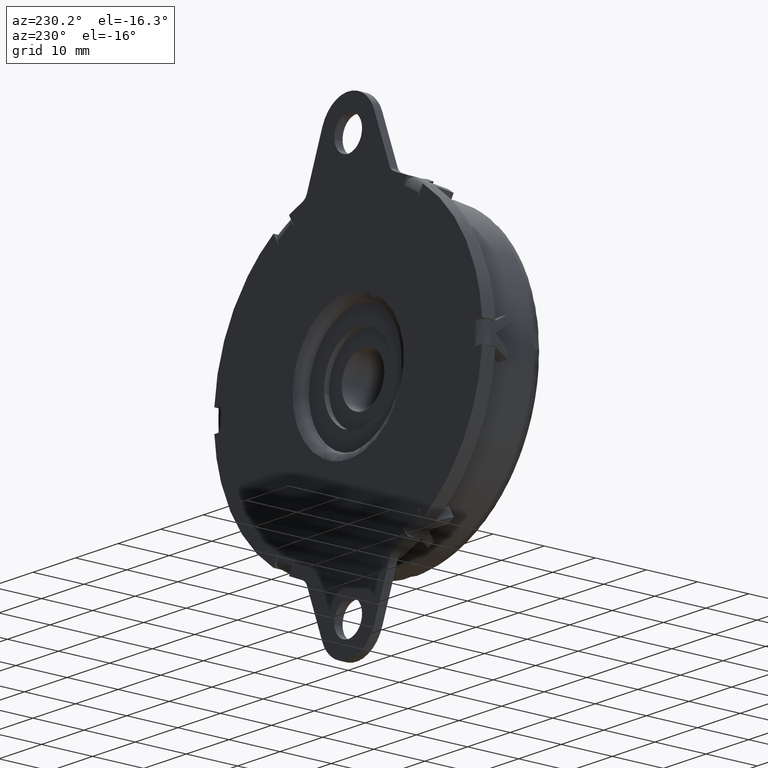
[diagram: clean part render]
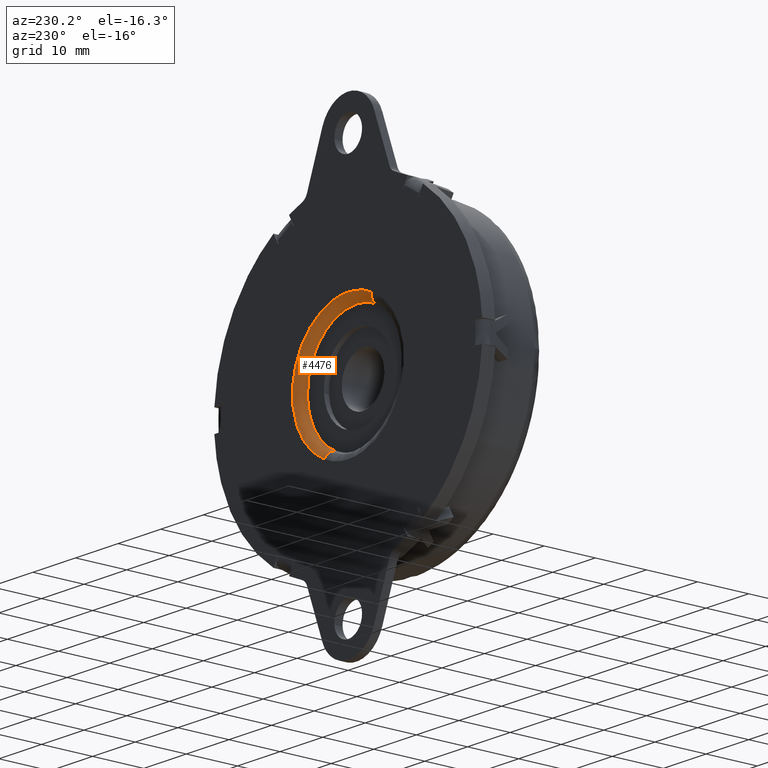
[diagram: same view with one face highlighted and labeled with its STEP entity id]
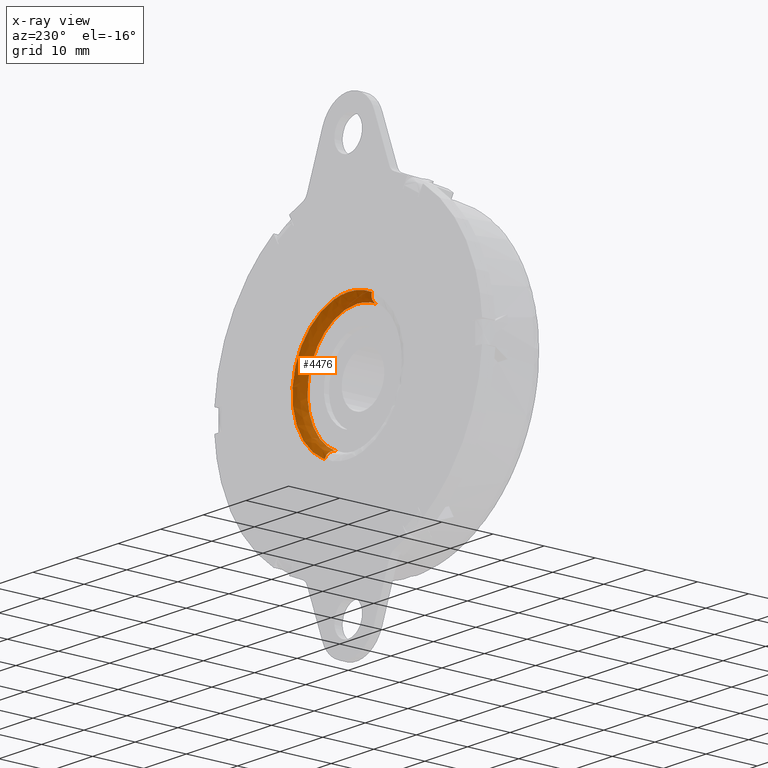
[diagram: x-ray of the same camera — body ghosted, the highlighted face saturated]
A machine part, auxiliary view. The second image highlights one B-rep face of the part: STEP entity #4476.
The next image is the same camera in x-ray: the body ghosted, the highlighted face saturated — about 0% of this face is hidden behind the body in this view.
In plain terms, the highlighted face is a freeform B-spline surface patch.
Its self-contained STEP definition (entity closure, byte-faithful):
#3776=CARTESIAN_POINT('',(-4.896461853000357,-1.600000000029603,10.405511103358270));
#3777=VERTEX_POINT('',#3776);
#3793=CARTESIAN_POINT('',(0.0,-1.600000000000045,11.500000000000000));
#3794=VERTEX_POINT('',#3793);
#3795=CARTESIAN_POINT('',(-4.896461853000357,-1.600000000029603,10.405511103358272));
#3796=CARTESIAN_POINT('',(-2.570554553318387,-1.600000000014824,11.500000000000007));
#3797=CARTESIAN_POINT('',(0.0,-1.600000000000045,11.500000000000000));
#3805=(BOUNDED_CURVE()B_SPLINE_CURVE(2,(#3795,#3796,#3797),.UNSPECIFIED.,.F.,.U.)B_SPLINE_CURVE_WITH_KNOTS((3,3),(0.927668464636445,1.0),.UNSPECIFIED.)CURVE()GEOMETRIC_REPRESENTATION_ITEM()RATIONAL_B_SPLINE_CURVE((0.879552628112392,0.915258335142597,1.0))REPRESENTATION_ITEM(''));
#3806=EDGE_CURVE('',#3777,#3794,#3805,.T.);
#3808=CARTESIAN_POINT('',(11.269134103130069,-1.600000000015115,2.292731245844300));
#3809=VERTEX_POINT('',#3808);
#3810=CARTESIAN_POINT('',(0.0,-1.600000000000045,11.500000000000000));
#3811=CARTESIAN_POINT('',(9.395894103645524,-1.600000000002744,11.500000000000000));
#3812=CARTESIAN_POINT('',(11.269134103130078,-1.600000000015115,2.292731245844301));
#3820=(BOUNDED_CURVE()B_SPLINE_CURVE(2,(#3810,#3811,#3812),.UNSPECIFIED.,.F.,.U.)B_SPLINE_CURVE_WITH_KNOTS((3,3),(0.0,0.215824476329975),.UNSPECIFIED.)CURVE()GEOMETRIC_REPRESENTATION_ITEM()RATIONAL_B_SPLINE_CURVE((1.0,0.747145897715944,0.930868629138625))REPRESENTATION_ITEM(''));
#3821=EDGE_CURVE('',#3794,#3809,#3820,.T.);
#3875=CARTESIAN_POINT('',(4.896461853000353,-1.600000000029604,-10.405511103358270));
#3876=VERTEX_POINT('',#3875);
#3877=CARTESIAN_POINT('',(11.269134103130078,-1.600000000015115,2.292731245844301));
#3878=CARTESIAN_POINT('',(11.500000000000000,-1.600000000016640,1.157989109633505));
#3879=CARTESIAN_POINT('',(11.500000000000000,-1.600000000018128,1.086710E-015));
#3880=CARTESIAN_POINT('',(11.500000000000002,-1.600000000027508,-7.298121921756137));
#3881=CARTESIAN_POINT('',(4.896461853000353,-1.600000000029603,-10.405511103358272));
#3889=(BOUNDED_CURVE()B_SPLINE_CURVE(2,(#3877,#3878,#3879,#3880,#3881),.UNSPECIFIED.,.F.,.U.)B_SPLINE_CURVE_WITH_KNOTS((3,2,3),(0.215824476329975,0.250000000000000,0.427668464636445),.UNSPECIFIED.)CURVE()GEOMETRIC_REPRESENTATION_ITEM()RATIONAL_B_SPLINE_CURVE((0.930868629138625,0.959960883470603,1.0,0.791848446043951,0.879552628112392))REPRESENTATION_ITEM(''));
#3890=EDGE_CURVE('',#3809,#3876,#3889,.T.);
#4354=CARTESIAN_POINT('',(-5.963176868610313,-0.004499903512453,11.804374172743010));
#4355=CARTESIAN_POINT('',(-5.796945072676427,-0.004499903512453,11.882596918311263));
#4356=CARTESIAN_POINT('',(6.332970350237564,-0.004499903512453,17.590501850460196));
#4357=CARTESIAN_POINT('',(11.961736100348876,-0.004499903512453,5.628765750111318));
#4358=CARTESIAN_POINT('',(17.590501850460196,-0.004499903512453,-6.332970350237563));
#4359=CARTESIAN_POINT('',(5.460586427546122,-0.004499903512453,-12.040875282386533));
#4360=CARTESIAN_POINT('',(5.294354631612140,-0.004499903512453,-12.119098027954831));
#4361=CARTESIAN_POINT('',(-5.336917881007624,0.099846889138506,10.564666617258721));
#4362=CARTESIAN_POINT('',(-5.188143919802224,0.099846889138506,10.634674329376439));
#4363=CARTESIAN_POINT('',(5.667875269638032,0.099846889138506,15.743129196081803));
#4364=CARTESIAN_POINT('',(10.705502232859921,0.099846889138506,5.037626963221888));
#4365=CARTESIAN_POINT('',(15.743129196081803,0.099846889138506,-5.667875269638032));
#4366=CARTESIAN_POINT('',(4.887110006641474,0.099846889138506,-10.776330136343439));
#4367=CARTESIAN_POINT('',(4.738336045435988,0.099846889138506,-10.846337848461198));
#4368=CARTESIAN_POINT('',(-5.203772058386470,-1.260788624124758,10.301098531926369));
#4369=CARTESIAN_POINT('',(-5.058709720985472,-1.260788624124758,10.369359686456431));
#4370=CARTESIAN_POINT('',(5.526472697570054,-1.260788624124758,15.350368442744585));
#4371=CARTESIAN_POINT('',(10.438420570157319,-1.260788624124758,4.911947872587266));
#4372=CARTESIAN_POINT('',(15.350368442744585,-1.260788624124758,-5.526472697570053));
#4373=CARTESIAN_POINT('',(4.765186024188987,-1.260788624124758,-10.507481453858246));
#4374=CARTESIAN_POINT('',(4.620123686787903,-1.260788624124758,-10.575742608388342));
#4375=CARTESIAN_POINT('',(-5.181370061248143,-1.489717720617386,10.256752780950990));
#4376=CARTESIAN_POINT('',(-5.036932210475476,-1.489717720617386,10.324720074379673));
#4377=CARTESIAN_POINT('',(5.502681489160671,-1.489717720617386,15.284285819203761));
#4378=CARTESIAN_POINT('',(10.393483654182216,-1.489717720617386,4.890802165021546));
#4379=CARTESIAN_POINT('',(15.284285819203761,-1.489717720617386,-5.502681489160670));
#4380=CARTESIAN_POINT('',(4.744672119567539,-1.489717720617386,-10.462247233984792));
#4381=CARTESIAN_POINT('',(4.600234268794790,-1.489717720617386,-10.530214527413516));
#4382=CARTESIAN_POINT('',(-5.189511350267297,-1.723275520148237,10.272868825124762));
#4383=CARTESIAN_POINT('',(-5.044846549812490,-1.723275520148237,10.340942912967492));
#4384=CARTESIAN_POINT('',(5.511327642562965,-1.723275520148237,15.308301434153972));
#4385=CARTESIAN_POINT('',(10.409814538358468,-1.723275520148237,4.898486895795505));
#4386=CARTESIAN_POINT('',(15.308301434153972,-1.723275520148237,-5.511327642562964));
#4387=CARTESIAN_POINT('',(4.752127241778444,-1.723275520148237,-10.478686163749479));
#4388=CARTESIAN_POINT('',(4.607462441323556,-1.723275520148238,-10.546760251592248));
#4396=(BOUNDED_SURFACE()B_SPLINE_SURFACE(2,2,((#4354,#4361,#4368,#4375,#4382),(#4355,#4362,#4369,#4376,#4383),(#4356,#4363,#4370,#4377,#4384),(#4357,#4364,#4371,#4378,#4385),(#4358,#4365,#4372,#4379,#4386),(#4359,#4366,#4373,#4380,#4387),(#4360,#4367,#4374,#4381,#4388)),.UNSPECIFIED.,.F.,.F.,.U.)B_SPLINE_SURFACE_WITH_KNOTS((3,1,2,1,3),(3,2,3),(0.0,0.438069424102511,22.341540629074849,44.245011834047183,44.683081258149947),(0.0,2.394959752096725,2.910430458320736),.UNSPECIFIED.)GEOMETRIC_REPRESENTATION_ITEM()RATIONAL_B_SPLINE_SURFACE(((0.967137327404569,0.746210794131191,1.011715728752620,0.954570711582519,0.919959430465262),(0.961537573307450,0.741890211279772,1.005857864376310,0.949043718567453,0.914632837804676),(0.675950114356304,0.521540485858931,0.707106781186548,0.667167074801020,0.642976612116663),(0.955937819210330,0.737569628428354,1.0,0.943516725552387,0.909306245144090),(0.675950114356304,0.521540485858931,0.707106781186548,0.667167074801020,0.642976612116663),(0.961537573307453,0.741890211279775,1.005857864376313,0.949043718567456,0.914632837804679),(0.967137327404576,0.746210794131196,1.011715728752627,0.954570711582526,0.919959430465268)))REPRESENTATION_ITEM('')SURFACE());
#4397=ORIENTED_EDGE('',*,*,#3806,.F.);
#4398=CARTESIAN_POINT('',(-5.577708719492491,-3.578918E-014,11.853234387290099));
#4399=VERTEX_POINT('',#4398);
#4400=CARTESIAN_POINT('',(-5.577708719492491,-3.578918E-014,11.853234387290103));
#4401=CARTESIAN_POINT('',(-5.028404312401743,-1.421949E-011,10.685903102225581));
#4402=CARTESIAN_POINT('',(-4.911947872588756,-1.260788624124757,10.438420570156620));
#4403=CARTESIAN_POINT('',(-4.896461852998767,-1.428444421976435,10.405511103355515));
#4404=CARTESIAN_POINT('',(-4.896461853000357,-1.600000000029603,10.405511103358272));
#4412=(BOUNDED_CURVE()B_SPLINE_CURVE(2,(#4400,#4401,#4402,#4403,#4404),.UNSPECIFIED.,.F.,.U.)B_SPLINE_CURVE_WITH_KNOTS((3,2,3),(-3.730990502060432,-2.0,-1.706783670412099),.UNSPECIFIED.)CURVE()GEOMETRIC_REPRESENTATION_ITEM()RATIONAL_B_SPLINE_CURVE((0.933299770358804,0.752052510591353,1.0,0.957999623517056,0.928314443267751))REPRESENTATION_ITEM(''));
#4413=EDGE_CURVE('',#4399,#3777,#4412,.T.);
#4414=ORIENTED_EDGE('',*,*,#4413,.F.);
#4415=CARTESIAN_POINT('',(0.0,-4.510281E-014,13.100000000000000));
#4416=VERTEX_POINT('',#4415);
#4417=CARTESIAN_POINT('',(0.0,-4.510281E-014,13.100000000000000));
#4418=CARTESIAN_POINT('',(-2.928196925947474,-3.996624E-014,13.099999999992047));
#4419=CARTESIAN_POINT('',(-5.577708719492491,-3.578918E-014,11.853234387290112));
#4427=(BOUNDED_CURVE()B_SPLINE_CURVE(2,(#4417,#4418,#4419),.UNSPECIFIED.,.F.,.U.)B_SPLINE_CURVE_WITH_KNOTS((3,3),(0.0,0.072331535363493),.UNSPECIFIED.)CURVE()GEOMETRIC_REPRESENTATION_ITEM()RATIONAL_B_SPLINE_CURVE((1.0,0.915258335142670,0.879552628112454))REPRESENTATION_ITEM(''));
#4428=EDGE_CURVE('',#4416,#4399,#4427,.T.);
#4429=ORIENTED_EDGE('',*,*,#4428,.F.);
#4430=CARTESIAN_POINT('',(5.577708719492488,-2.285456E-014,-11.853234387290110));
#4431=VERTEX_POINT('',#4430);
#4432=CARTESIAN_POINT('',(5.577708719492488,-2.285456E-014,-11.853234387290110));
#4433=CARTESIAN_POINT('',(6.286624842449436,-2.300321E-014,-11.519730503929070));
#4434=CARTESIAN_POINT('',(7.604354548884309,-2.340814E-014,-10.748319807098691));
#4435=CARTESIAN_POINT('',(9.473466849826714,-2.440004E-014,-9.162445606708292));
#4436=CARTESIAN_POINT('',(10.954336347532109,-2.568312E-014,-7.320450011076586));
#4437=CARTESIAN_POINT('',(11.937815442982011,-2.705314E-014,-5.487251693260173));
#4438=CARTESIAN_POINT('',(12.572775171919490,-2.836271E-014,-3.803147550015830));
#4439=CARTESIAN_POINT('',(12.915500660659530,-2.951916E-014,-2.364672806530842));
#4440=CARTESIAN_POINT('',(13.116092670025941,-3.092026E-014,-0.669871953009330));
#4441=CARTESIAN_POINT('',(13.110035340899129,-3.237387E-014,1.040575851291162));
#4442=CARTESIAN_POINT('',(12.843367786522521,-3.385862E-014,2.729433442675716));
#4443=CARTESIAN_POINT('',(12.396148589074309,-3.530149E-014,4.328630069659247));
#4444=CARTESIAN_POINT('',(11.730586870595280,-3.680772E-014,5.953627570992549));
#4445=CARTESIAN_POINT('',(10.671990397844910,-3.848448E-014,7.691591303723159));
#4446=CARTESIAN_POINT('',(9.383698623466771,-4.001370E-014,9.204466896286517));
#4447=CARTESIAN_POINT('',(8.136667901523083,-4.118464E-014,10.304645051584471));
#4448=CARTESIAN_POINT('',(6.848080075987244,-4.218887E-014,11.199214939266460));
#4449=CARTESIAN_POINT('',(5.426660603830162,-4.311190E-014,11.968462049965330));
#4450=CARTESIAN_POINT('',(3.869013596906487,-4.390364E-014,12.552657140729890));
#4451=CARTESIAN_POINT('',(2.027675884592708,-4.462285E-014,12.988022209853950));
#4452=CARTESIAN_POINT('',(0.783434210777391,-4.495417E-014,13.100082132464340));
#4453=CARTESIAN_POINT('',(0.0,-4.510281E-014,13.100000000000000));
#4454=B_SPLINE_CURVE_WITH_KNOTS('',3,(#4432,#4433,#4434,#4435,#4436,#4437,#4438,#4439,#4440,#4441,#4442,#4443,#4444,#4445,#4446,#4447,#4448,#4449,#4450,#4451,#4452,#4453),.UNSPECIFIED.,.F.,.U.,(4,1,1,1,1,1,1,1,1,1,1,1,1,1,1,1,1,1,1,4),(0.000000124654910,2.350332307643463,4.562425569134792,7.327544135134779,9.401393998767134,10.783957622834910,12.719525624974040,13.825566272983851,15.899293264843591,17.834889308632270,18.940956869643632,20.876519611071220,23.088614820063949,25.024204112578921,26.821527796519980,28.065838702543420,29.724916860213710,31.660499955352758,33.043056163657909,35.393347086086450),.UNSPECIFIED.);
#4455=EDGE_CURVE('',#4431,#4416,#4454,.T.);
#4456=ORIENTED_EDGE('',*,*,#4455,.F.);
#4457=CARTESIAN_POINT('',(5.577708719492488,-2.285456E-014,-11.853234387290112));
#4458=CARTESIAN_POINT('',(5.028404312401740,-1.421092E-011,-10.685903102225582));
#4459=CARTESIAN_POINT('',(4.911947872588753,-1.260788624124755,-10.438420570156620));
#4460=CARTESIAN_POINT('',(4.896461852998764,-1.428444421976433,-10.405511103355517));
#4461=CARTESIAN_POINT('',(4.896461853000353,-1.600000000029604,-10.405511103358272));
#4469=(BOUNDED_CURVE()B_SPLINE_CURVE(2,(#4457,#4458,#4459,#4460,#4461),.UNSPECIFIED.,.F.,.U.)B_SPLINE_CURVE_WITH_KNOTS((3,2,3),(-3.730990502060433,-2.0,-1.706783670412098),.UNSPECIFIED.)CURVE()GEOMETRIC_REPRESENTATION_ITEM()RATIONAL_B_SPLINE_CURVE((0.933299770358804,0.752052510591353,1.0,0.957999623517056,0.928314443267751))REPRESENTATION_ITEM(''));
#4470=EDGE_CURVE('',#4431,#3876,#4469,.T.);
#4471=ORIENTED_EDGE('',*,*,#4470,.T.);
#4472=ORIENTED_EDGE('',*,*,#3890,.F.);
#4473=ORIENTED_EDGE('',*,*,#3821,.F.);
#4474=EDGE_LOOP('',(#4397,#4414,#4429,#4456,#4471,#4472,#4473));
#4475=FACE_OUTER_BOUND('',#4474,.T.);
#4476=ADVANCED_FACE('',(#4475),#4396,.T.);